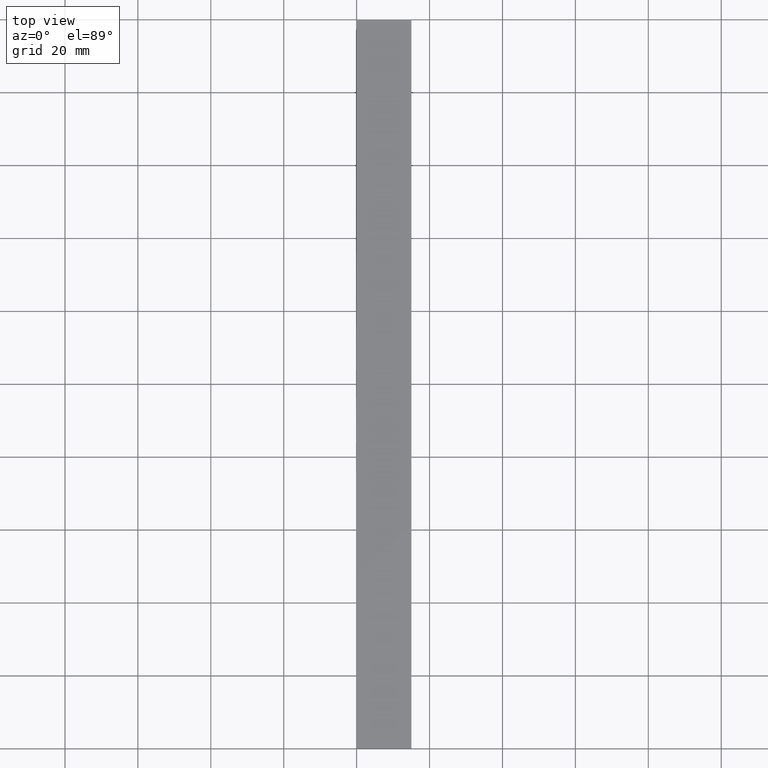
[diagram: clean part render]
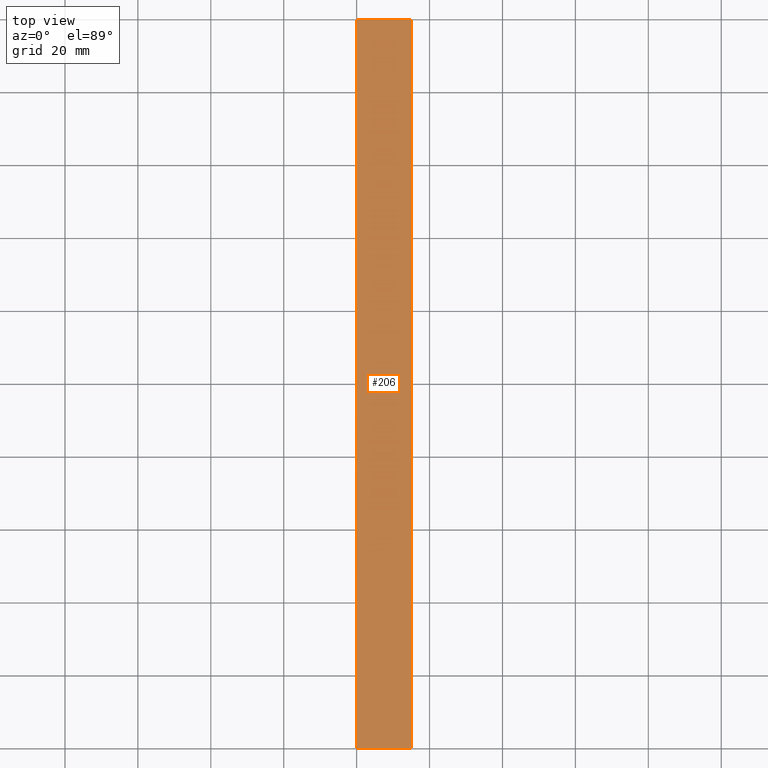
[diagram: same view with one face highlighted and labeled with its STEP entity id]
A machine part, top view. The second image highlights one B-rep face of the part: STEP entity #206.
In plain terms, the highlighted planar face has unit normal (0, 0, -1).
Its self-contained STEP definition (entity closure, byte-faithful):
#3 = CARTESIAN_POINT ( 'NONE',  ( 0.0000000000000000000, 1000.000000000000000, 5.000000000000000000 ) ) ;
#5 = CARTESIAN_POINT ( 'NONE',  ( 15.00000000000000000, 200.0000000000000000, 5.000000000000000000 ) ) ;
#7 = EDGE_CURVE ( 'NONE', #44, #79, #220, .T. ) ;
#21 = EDGE_CURVE ( 'NONE', #44, #37, #91, .T. ) ;
#23 = EDGE_LOOP ( 'NONE', ( #72, #161, #45, #224 ) ) ;
#26 = DIRECTION ( 'NONE',  ( 0.0000000000000000000, -1.000000000000000000, 0.0000000000000000000 ) ) ;
#30 = DIRECTION ( 'NONE',  ( 1.000000000000000000, 0.0000000000000000000, 0.0000000000000000000 ) ) ;
#37 = VERTEX_POINT ( 'NONE', #5 ) ;
#43 = CARTESIAN_POINT ( 'NONE',  ( 15.00000000000000000, 0.0000000000000000000, 5.000000000000000000 ) ) ;
#44 = VERTEX_POINT ( 'NONE', #50 ) ;
#45 = ORIENTED_EDGE ( 'NONE', *, *, #21, .F. ) ;
#46 = EDGE_CURVE ( 'NONE', #79, #223, #211, .T. ) ;
#50 = CARTESIAN_POINT ( 'NONE',  ( 0.0000000000000000000, 200.0000000000000000, 5.000000000000000000 ) ) ;
#51 = CARTESIAN_POINT ( 'NONE',  ( 15.00000000000000000, 1000.000000000000000, 5.000000000000000000 ) ) ;
#59 = LINE ( 'NONE', #51, #129 ) ;
#72 = ORIENTED_EDGE ( 'NONE', *, *, #46, .T. ) ;
#79 = VERTEX_POINT ( 'NONE', #115 ) ;
#82 = VECTOR ( 'NONE', #30, 1000.000000000000000 ) ;
#91 = LINE ( 'NONE', #151, #82 ) ;
#99 = DIRECTION ( 'NONE',  ( 0.0000000000000000000, -1.000000000000000000, 0.0000000000000000000 ) ) ;
#115 = CARTESIAN_POINT ( 'NONE',  ( 0.0000000000000000000, 0.0000000000000000000, 5.000000000000000000 ) ) ;
#124 = PLANE ( 'NONE',  #222 ) ;
#129 = VECTOR ( 'NONE', #99, 1000.000000000000000 ) ;
#137 = VECTOR ( 'NONE', #148, 1000.000000000000000 ) ;
#140 = VECTOR ( 'NONE', #26, 1000.000000000000000 ) ;
#143 = CARTESIAN_POINT ( 'NONE',  ( 0.0000000000000000000, 1000.000000000000000, 5.000000000000000000 ) ) ;
#148 = DIRECTION ( 'NONE',  ( 1.000000000000000000, 0.0000000000000000000, 0.0000000000000000000 ) ) ;
#151 = CARTESIAN_POINT ( 'NONE',  ( 0.0000000000000000000, 200.0000000000000000, 5.000000000000000000 ) ) ;
#158 = DIRECTION ( 'NONE',  ( 0.0000000000000000000, 0.0000000000000000000, -1.000000000000000000 ) ) ;
#161 = ORIENTED_EDGE ( 'NONE', *, *, #212, .F. ) ;
#165 = DIRECTION ( 'NONE',  ( -1.000000000000000000, 0.0000000000000000000, 0.0000000000000000000 ) ) ;
#193 = FACE_OUTER_BOUND ( 'NONE', #23, .T. ) ;
#206 = ADVANCED_FACE ( 'NONE', ( #193 ), #124, .F. ) ;
#211 = LINE ( 'NONE', #227, #137 ) ;
#212 = EDGE_CURVE ( 'NONE', #37, #223, #59, .T. ) ;
#220 = LINE ( 'NONE', #3, #140 ) ;
#222 = AXIS2_PLACEMENT_3D ( 'NONE', #143, #158, #165 ) ;
#223 = VERTEX_POINT ( 'NONE', #43 ) ;
#224 = ORIENTED_EDGE ( 'NONE', *, *, #7, .T. ) ;
#227 = CARTESIAN_POINT ( 'NONE',  ( 0.0000000000000000000, 0.0000000000000000000, 5.000000000000000000 ) ) ;